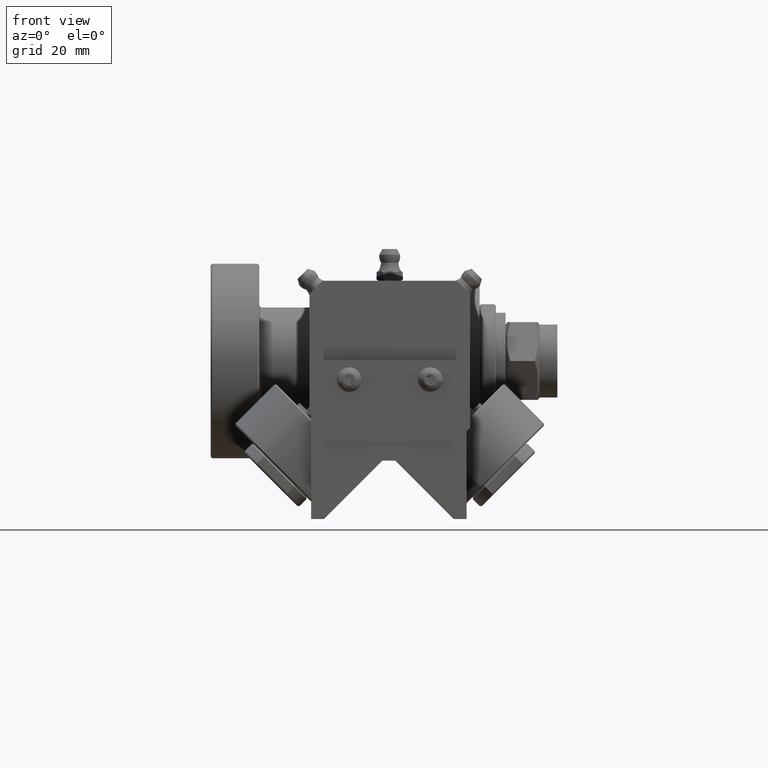
[diagram: clean part render]
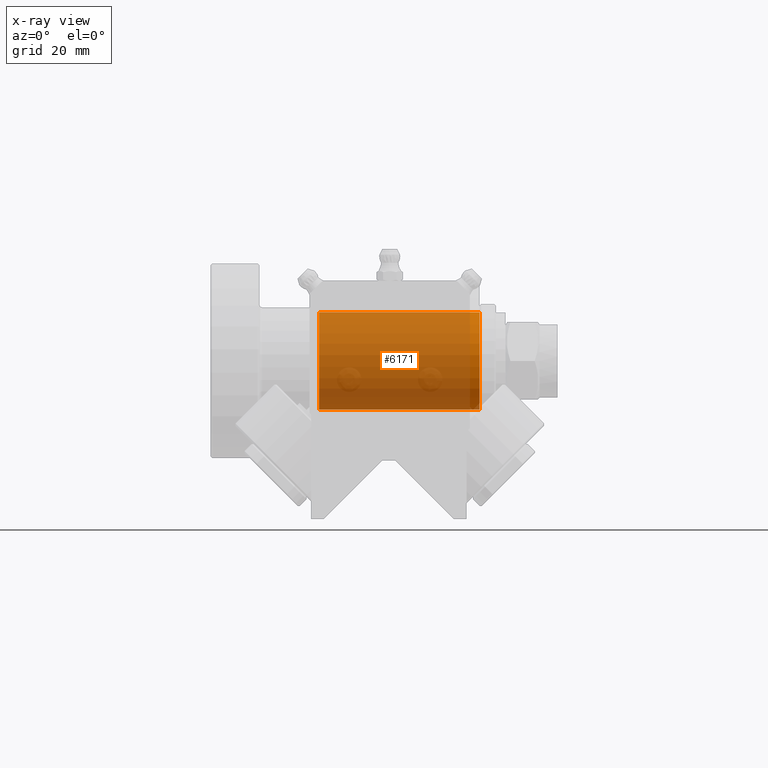
[diagram: x-ray — body ghosted, one internal face saturated and labeled with its STEP entity id]
A machine part, front view, then the same camera in x-ray: the body is ghosted and one INTERNAL B-rep face — a face not visible from any outside direction — is saturated and labeled: STEP entity #6171.
In plain terms, the highlighted cylindrical surface (bore or boss wall) has radius 15 mm, axis along (-1, 0, -0).
Its self-contained STEP definition (entity closure, byte-faithful):
#849=FACE_OUTER_BOUND('',#1248,.T.);
#1248=EDGE_LOOP('',(#5205,#5206,#5207,#5208,#5209));
#1646=CIRCLE('',#7195,15.);
#1647=CIRCLE('',#7198,15.);
#1648=CIRCLE('',#7199,15.);
#2059=LINE('',#12436,#2409);
#2409=VECTOR('',#8600,15.);
#2966=VERTEX_POINT('',#12425);
#2967=VERTEX_POINT('',#12430);
#2968=VERTEX_POINT('',#12432);
#3745=EDGE_CURVE('',#2966,#2966,#1646,.T.);
#3748=EDGE_CURVE('',#2967,#2968,#1647,.T.);
#3749=EDGE_CURVE('',#2968,#2967,#1648,.T.);
#3750=EDGE_CURVE('',#2968,#2966,#2059,.T.);
#5205=ORIENTED_EDGE('',*,*,#3748,.F.);
#5206=ORIENTED_EDGE('',*,*,#3749,.F.);
#5207=ORIENTED_EDGE('',*,*,#3750,.T.);
#5208=ORIENTED_EDGE('',*,*,#3745,.T.);
#5209=ORIENTED_EDGE('',*,*,#3750,.F.);
#5941=CYLINDRICAL_SURFACE('',#7200,15.);
#6171=ADVANCED_FACE('',(#849),#5941,.T.);
#7195=AXIS2_PLACEMENT_3D('',#12426,#8586,#8587);
#7198=AXIS2_PLACEMENT_3D('',#12433,#8594,#8595);
#7199=AXIS2_PLACEMENT_3D('',#12434,#8596,#8597);
#7200=AXIS2_PLACEMENT_3D('',#12435,#8598,#8599);
#8586=DIRECTION('center_axis',(-1.,0.,0.));
#8587=DIRECTION('ref_axis',(0.,0.,1.));
#8594=DIRECTION('center_axis',(-1.,0.,0.));
#8595=DIRECTION('ref_axis',(0.,0.,-1.));
#8596=DIRECTION('center_axis',(-1.,0.,0.));
#8597=DIRECTION('ref_axis',(0.,0.,-1.));
#8598=DIRECTION('center_axis',(-1.,0.,0.));
#8599=DIRECTION('ref_axis',(0.,0.,1.));
#8600=DIRECTION('',(1.,0.,0.));
#12425=CARTESIAN_POINT('',(22.5,-1.83697019872103E-15,-15.));
#12426=CARTESIAN_POINT('Origin',(22.5,0.,0.));
#12430=CARTESIAN_POINT('',(-27.,1.83697019872103E-15,15.));
#12432=CARTESIAN_POINT('',(-27.,-1.83697019872103E-15,-15.));
#12433=CARTESIAN_POINT('Origin',(-27.,0.,0.));
#12434=CARTESIAN_POINT('Origin',(-27.,0.,0.));
#12435=CARTESIAN_POINT('Origin',(-2.5,0.,0.));
#12436=CARTESIAN_POINT('',(-2.5,-1.83697019872103E-15,-15.));